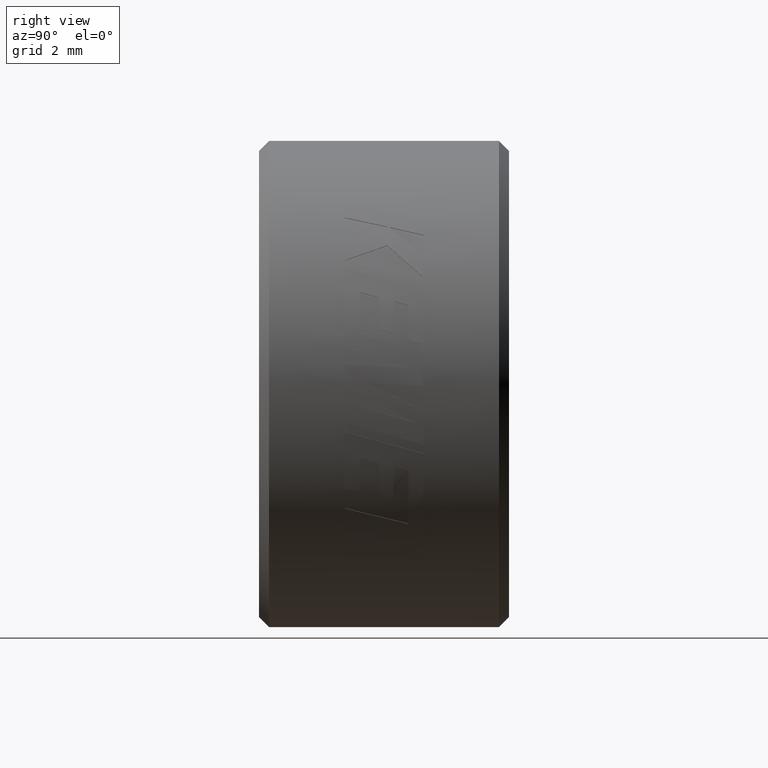
[diagram: clean part render]
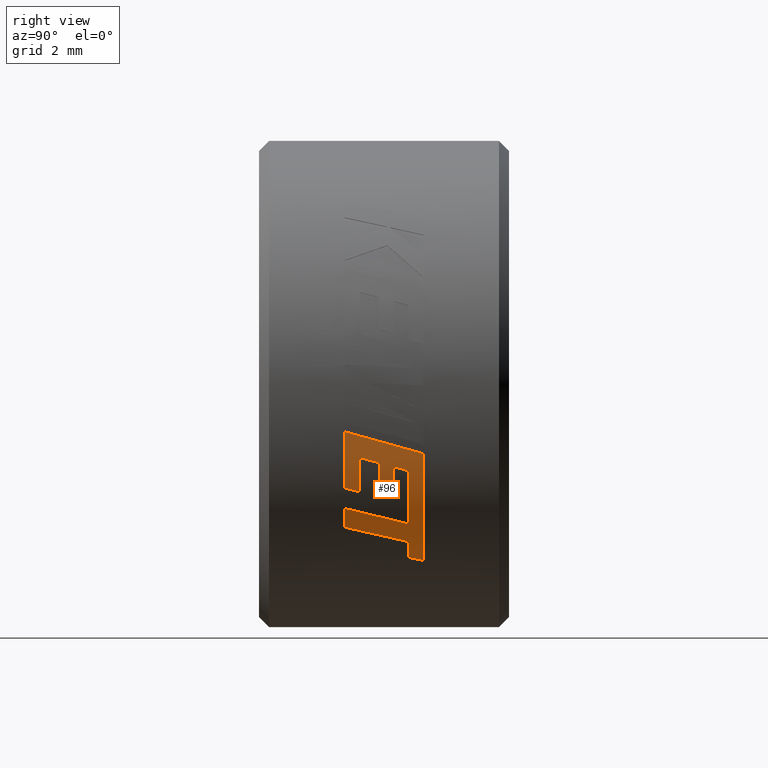
[diagram: same view with one face highlighted and labeled with its STEP entity id]
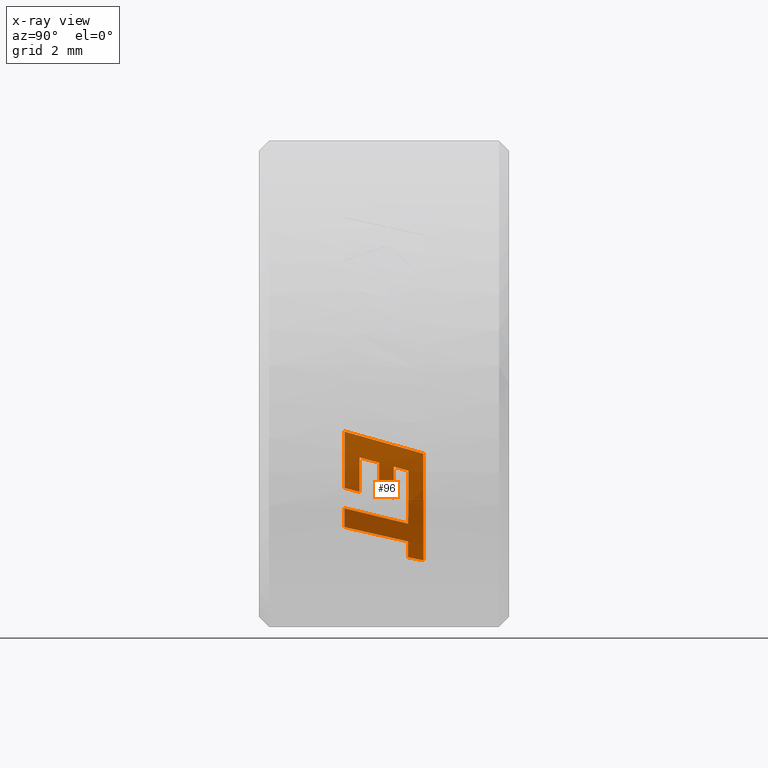
[diagram: x-ray of the same camera — body ghosted, the highlighted face saturated]
A machine part, right view. The second image highlights one B-rep face of the part: STEP entity #96.
The next image is the same camera in x-ray: the body ghosted, the highlighted face saturated — about 0% of this face is hidden behind the body in this view.
In plain terms, the highlighted cylindrical surface (partial cylindrical patch) has radius 5.26 mm, axis along (0, 1, 0).
Its self-contained STEP definition (entity closure, byte-faithful):
#12 = DIRECTION ( 'NONE',  ( 0.000000000000000000, 1.000000000000000000, 0.000000000000000000 ) ) ;
#26 = EDGE_CURVE ( 'NONE', #1311, #2202, #672, .T. ) ;
#45 = CARTESIAN_POINT ( 'NONE',  ( 4.010860456621681891, 0.5216594178131411796, -3.403027827906864644 ) ) ;
#55 = EDGE_CURVE ( 'NONE', #956, #1168, #1120, .T. ) ;
#57 = DIRECTION ( 'NONE',  ( 0.000000000000000000, 0.000000000000000000, 1.000000000000000000 ) ) ;
#61 = DIRECTION ( 'NONE',  ( 0.000000000000000000, 1.000000000000000000, 0.000000000000000000 ) ) ;
#68 = CARTESIAN_POINT ( 'NONE',  ( 5.040167173883128626, 0.8501155299763395456, -1.504764054365650416 ) ) ;
#76 = DIRECTION ( 'NONE',  ( 0.000000000000000000, 0.000000000000000000, 1.000000000000000000 ) ) ;
#96 = ADVANCED_FACE ( 'NONE', ( #2167 ), #999, .T. ) ;
#97 = CARTESIAN_POINT ( 'NONE',  ( 3.693584115049682204, 0.5216224423916465680, -3.745001520033422793 ) ) ;
#110 = EDGE_CURVE ( 'NONE', #1172, #1757, #1608, .T. ) ;
#112 = CARTESIAN_POINT ( 'NONE',  ( 3.910227406470574874, 0.5216470926726438639, -3.521635474359337437 ) ) ;
#114 = ORIENTED_EDGE ( 'NONE', *, *, #2138, .F. ) ;
#123 = ORIENTED_EDGE ( 'NONE', *, *, #897, .T. ) ;
#125 = CARTESIAN_POINT ( 'NONE',  ( 3.648491064170817477, 0.7406178341147761079, -3.789077321652413399 ) ) ;
#149 = ORIENTED_EDGE ( 'NONE', *, *, #1084, .T. ) ;
#151 = ORIENTED_EDGE ( 'NONE', *, *, #110, .T. ) ;
#185 = CARTESIAN_POINT ( 'NONE',  ( 4.406512115215013736, 0.5224611484576491272, -2.877513124577517623 ) ) ;
#186 = CARTESIAN_POINT ( 'NONE',  ( 5.002361790938985919, -0.3863979468079390411, -1.626530346554148077 ) ) ;
#203 = AXIS2_PLACEMENT_3D ( 'NONE', #1448, #1317, #1912 ) ;
#240 = CARTESIAN_POINT ( 'NONE',  ( 4.010860456621681891, 0.5216594178131411796, -3.403027827906864644 ) ) ;
#243 = CARTESIAN_POINT ( 'NONE',  ( 5.126361800914518874, -0.2839695298731071960, -1.189419255518920471 ) ) ;
#254 = CARTESIAN_POINT ( 'NONE',  ( 4.914763290022835740, 0.5262577309738969422, -1.874220318704262533 ) ) ;
#256 = CARTESIAN_POINT ( 'NONE',  ( 3.625649623804711563, 0.8501155299763404338, -3.810808943702733931 ) ) ;
#261 = ORIENTED_EDGE ( 'NONE', *, *, #1751, .T. ) ;
#274 = EDGE_CURVE ( 'NONE', #460, #1499, #2282, .T. ) ;
#309 = ORIENTED_EDGE ( 'NONE', *, *, #26, .F. ) ;
#310 = CARTESIAN_POINT ( 'NONE',  ( 4.255041138469063178, -0.8510120597978315660, -3.092284739466256926 ) ) ;
#334 = VERTEX_POINT ( 'NONE', #1143 ) ;
#339 = CARTESIAN_POINT ( 'NONE',  ( 4.383030547821341827, 0.06410225861231760858, -2.911016204804220298 ) ) ;
#354 = ORIENTED_EDGE ( 'NONE', *, *, #418, .T. ) ;
#384 = VERTEX_POINT ( 'NONE', #1422 ) ;
#418 = EDGE_CURVE ( 'NONE', #2253, #1789, #1624, .T. ) ;
#443 = CARTESIAN_POINT ( 'NONE',  ( 4.914763290022835740, 0.5262577309738969422, -1.874220318704262533 ) ) ;
#451 = CARTESIAN_POINT ( 'NONE',  ( 4.989751338830667571, -0.2454864591446034583, -1.664814113450931998 ) ) ;
#457 = EDGE_CURVE ( 'NONE', #1168, #1017, #1201, .T. ) ;
#460 = VERTEX_POINT ( 'NONE', #843 ) ;
#479 = CARTESIAN_POINT ( 'NONE',  ( 4.741975839466228138, -0.7431111846889788541, -2.276445945582600494 ) ) ;
#480 = B_SPLINE_CURVE_WITH_KNOTS ( 'NONE', 3,
 ( #1976, #1251, #125, #256 ),
 .UNSPECIFIED., .F., .F.,
 ( 4, 4 ),
 ( 0.000000000000000000, 1.000000000000000000 ),
 .UNSPECIFIED. ) ;
#494 = CARTESIAN_POINT ( 'NONE',  ( 3.804329881713983674, 0.5216347675321455490, -3.635776249396787563 ) ) ;
#496 = ORIENTED_EDGE ( 'NONE', *, *, #1996, .F. ) ;
#508 = CARTESIAN_POINT ( 'NONE',  ( 5.086915556446435893, 0.2830730000516167300, -1.348181590461009272 ) ) ;
#533 = B_SPLINE_CURVE_WITH_KNOTS ( 'NONE', 3,
 ( #68, #508, #243, #812 ),
 .UNSPECIFIED., .F., .F.,
 ( 4, 4 ),
 ( 0.000000000000000000, 1.000000000000000000 ),
 .UNSPECIFIED. ) ;
#536 = CIRCLE ( 'NONE', #1916, 5.259999999999999787 ) ;
#546 = EDGE_CURVE ( 'NONE', #1499, #1277, #1529, .T. ) ;
#549 = CARTESIAN_POINT ( 'NONE',  ( 3.625649623804711563, 0.8501155299763404338, -3.810808943702733931 ) ) ;
#618 = DIRECTION ( 'NONE',  ( 0.000000000000000000, 0.000000000000000000, 1.000000000000000000 ) ) ;
#651 = ORIENTED_EDGE ( 'NONE', *, *, #55, .T. ) ;
#672 = CIRCLE ( 'NONE', #2180, 5.259999999999999787 ) ;
#680 = CIRCLE ( 'NONE', #2192, 5.259999999999999787 ) ;
#708 = CARTESIAN_POINT ( 'NONE',  ( 4.454619619813009912, -0.3934549005927568954, -2.800238591717642223 ) ) ;
#735 = CARTESIAN_POINT ( 'NONE',  ( 4.536577579382012892, 0.8501155299763399897, -2.662153989957838363 ) ) ;
#741 = CARTESIAN_POINT ( 'NONE',  ( 4.521947814460941295, -0.8510120597978311219, -2.686929095322744931 ) ) ;
#742 = EDGE_CURVE ( 'NONE', #1757, #460, #1105, .T. ) ;
#761 = ORIENTED_EDGE ( 'NONE', *, *, #742, .T. ) ;
#772 = DIRECTION ( 'NONE',  ( 0.000000000000000000, 1.000000000000000000, 0.000000000000000000 ) ) ;
#778 = EDGE_CURVE ( 'NONE', #2025, #334, #533, .T. ) ;
#803 = CARTESIAN_POINT ( 'NONE',  ( 4.651333573947837863, 0.2098482682436754176, -2.456154714969239095 ) ) ;
#812 = CARTESIAN_POINT ( 'NONE',  ( 5.158334807668133237, -0.8510120597978311219, -1.029165687340650948 ) ) ;
#817 = CARTESIAN_POINT ( 'NONE',  ( 4.976702569521308739, -0.1045749714812679032, -1.702947895421345503 ) ) ;
#843 = CARTESIAN_POINT ( 'NONE',  ( 4.583408402439843599, 0.5240646097381626012, -2.580691267169290093 ) ) ;
#850 = CARTESIAN_POINT ( 'NONE',  ( 4.946874224995746694, 0.2098482682436745572, -1.787745899749941803 ) ) ;
#893 = CARTESIAN_POINT ( 'NONE',  ( 4.692674311466835668, -0.1045749714812687636, -2.376217121076954264 ) ) ;
#897 = EDGE_CURVE ( 'NONE', #384, #2142, #1590, .T. ) ;
#903 = CARTESIAN_POINT ( 'NONE',  ( 4.651333573947837863, 0.2098482682436754176, -2.456154714969239095 ) ) ;
#922 = CARTESIAN_POINT ( 'NONE',  ( 4.679122350480813708, 0.0002327750937131914562, -2.402980222236785757 ) ) ;
#956 = VERTEX_POINT ( 'NONE', #310 ) ;
#987 = CARTESIAN_POINT ( 'NONE',  ( 4.177578015849235271, -0.3934549005941734845, -3.198875432507845673 ) ) ;
#999 = CYLINDRICAL_SURFACE ( 'NONE', #1471, 5.259999999999999787 ) ;
#1005 = CARTESIAN_POINT ( 'NONE',  ( 5.014530594305473876, -0.5273094344712754289, -1.588106708875191453 ) ) ;
#1006 = DIRECTION ( 'NONE',  ( 0.000000000000000000, 0.000000000000000000, 1.000000000000000000 ) ) ;
#1014 = B_SPLINE_CURVE_WITH_KNOTS ( 'NONE', 3,
 ( #1891, #186, #451, #817 ),
 .UNSPECIFIED., .F., .F.,
 ( 4, 4 ),
 ( 0.000000000000000000, 1.000000000000000000 ),
 .UNSPECIFIED. ) ;
#1017 = VERTEX_POINT ( 'NONE', #1564 ) ;
#1019 = CARTESIAN_POINT ( 'NONE',  ( 4.946874224995746694, 0.2098482682436745572, -1.787745899749941803 ) ) ;
#1060 = CARTESIAN_POINT ( 'NONE',  ( 4.976702569521308739, -0.1045749714812679032, -1.702947895421345503 ) ) ;
#1064 = CARTESIAN_POINT ( 'NONE',  ( 4.665341432311307379, 0.1050405216686943338, -2.429627386903129516 ) ) ;
#1084 = EDGE_CURVE ( 'NONE', #334, #2253, #1746, .T. ) ;
#1086 = ORIENTED_EDGE ( 'NONE', *, *, #2300, .T. ) ;
#1092 = ORIENTED_EDGE ( 'NONE', *, *, #1650, .T. ) ;
#1100 = CARTESIAN_POINT ( 'NONE',  ( 4.307382701505363620, 0.5216594178173912244, -3.018949198441794657 ) ) ;
#1105 = B_SPLINE_CURVE_WITH_KNOTS ( 'NONE', 3,
 ( #254, #1249, #1623, #1776 ),
 .UNSPECIFIED., .F., .F.,
 ( 4, 4 ),
 ( 0.000000000000000000, 1.000000000000000000 ),
 .UNSPECIFIED. ) ;
#1108 = CARTESIAN_POINT ( 'NONE',  ( 4.307382701505363620, 0.5216594178173912244, -3.018949198441794657 ) ) ;
#1120 = B_SPLINE_CURVE_WITH_KNOTS ( 'NONE', 3,
 ( #1984, #987, #1186, #240 ),
 .UNSPECIFIED., .F., .F.,
 ( 4, 4 ),
 ( 0.000000000000000000, 1.000000000000000000 ),
 .UNSPECIFIED. ) ;
#1143 = CARTESIAN_POINT ( 'NONE',  ( 5.158334807668133237, -0.8510120597978311219, -1.029165687340650948 ) ) ;
#1158 = CARTESIAN_POINT ( 'NONE',  ( 4.583408402439843599, 0.5240646097381626012, -2.580691267169290093 ) ) ;
#1168 = VERTEX_POINT ( 'NONE', #1811 ) ;
#1172 = VERTEX_POINT ( 'NONE', #1019 ) ;
#1185 = VERTEX_POINT ( 'NONE', #1060 ) ;
#1186 = CARTESIAN_POINT ( 'NONE',  ( 4.096107833277343957, 0.06410225860948431942, -3.302553970697994501 ) ) ;
#1193 = CIRCLE ( 'NONE', #203, 5.259999999999999787 ) ;
#1201 = B_SPLINE_CURVE_WITH_KNOTS ( 'NONE', 3,
 ( #45, #112, #494, #97 ),
 .UNSPECIFIED., .F., .F.,
 ( 4, 4 ),
 ( 0.000000000000000000, 1.000000000000000000 ),
 .UNSPECIFIED. ) ;
#1211 = DIRECTION ( 'NONE',  ( 0.000000000000000000, 1.000000000000000000, 0.000000000000000000 ) ) ;
#1220 = CARTESIAN_POINT ( 'NONE',  ( 4.715021527675801849, -0.5273094344712746517, -2.331559991412131883 ) ) ;
#1249 = CARTESIAN_POINT ( 'NONE',  ( 4.821998172259291060, 0.5255266905619863094, -2.117478056777505113 ) ) ;
#1251 = CARTESIAN_POINT ( 'NONE',  ( 3.671137114910204780, 0.6311201382532116710, -3.767140331647297113 ) ) ;
#1254 = ORIENTED_EDGE ( 'NONE', *, *, #778, .T. ) ;
#1260 = DIRECTION ( 'NONE',  ( 0.000000000000000000, 1.000000000000000000, 0.000000000000000000 ) ) ;
#1277 = VERTEX_POINT ( 'NONE', #1719 ) ;
#1299 = ORIENTED_EDGE ( 'NONE', *, *, #1402, .T. ) ;
#1311 = VERTEX_POINT ( 'NONE', #735 ) ;
#1317 = DIRECTION ( 'NONE',  ( 0.000000000000000000, 1.000000000000000000, 0.000000000000000000 ) ) ;
#1329 = CARTESIAN_POINT ( 'NONE',  ( 0.000000000000000000, -0.8510120597978311219, 0.000000000000000000 ) ) ;
#1353 = AXIS2_PLACEMENT_3D ( 'NONE', #1573, #2327, #1006 ) ;
#1360 = EDGE_LOOP ( 'NONE', ( #761, #1932, #1717, #261, #651, #1958, #1086, #309, #2068, #1254, #149, #354, #114, #1299, #1092, #123, #496, #151 ) ) ;
#1400 = CARTESIAN_POINT ( 'NONE',  ( 0.000000000000000000, -2.700000000000000178, 0.000000000000000000 ) ) ;
#1402 = EDGE_CURVE ( 'NONE', #1425, #1185, #1014, .T. ) ;
#1422 = CARTESIAN_POINT ( 'NONE',  ( 4.692674311466835668, -0.1045749714812687636, -2.376217121076954264 ) ) ;
#1425 = VERTEX_POINT ( 'NONE', #1005 ) ;
#1448 = CARTESIAN_POINT ( 'NONE',  ( 0.000000000000000000, -0.8510120597978311219, 0.000000000000000000 ) ) ;
#1451 = CARTESIAN_POINT ( 'NONE',  ( 4.755090125149376235, -0.8510120597978315660, -2.248714722170619851 ) ) ;
#1469 = DIRECTION ( 'NONE',  ( 0.000000000000000000, 0.000000000000000000, 1.000000000000000000 ) ) ;
#1471 = AXIS2_PLACEMENT_3D ( 'NONE', #1400, #1211, #76 ) ;
#1499 = VERTEX_POINT ( 'NONE', #2313 ) ;
#1510 = AXIS2_PLACEMENT_3D ( 'NONE', #1329, #772, #2123 ) ;
#1514 = CARTESIAN_POINT ( 'NONE',  ( 4.498669509711159975, 0.5232628790979063638, -2.731190847606169925 ) ) ;
#1529 = B_SPLINE_CURVE_WITH_KNOTS ( 'NONE', 3,
 ( #1100, #339, #708, #741 ),
 .UNSPECIFIED., .F., .F.,
 ( 4, 4 ),
 ( 0.000000000000000000, 1.000000000000000000 ),
 .UNSPECIFIED. ) ;
#1564 = CARTESIAN_POINT ( 'NONE',  ( 3.693584115049682204, 0.5216224423916465680, -3.745001520033422793 ) ) ;
#1573 = CARTESIAN_POINT ( 'NONE',  ( 0.000000000000000000, 0.2098482682436745572, 0.000000000000000000 ) ) ;
#1590 = B_SPLINE_CURVE_WITH_KNOTS ( 'NONE', 3,
 ( #893, #922, #1064, #903 ),
 .UNSPECIFIED., .F., .F.,
 ( 4, 4 ),
 ( 0.000000000000000000, 1.000000000000000000 ),
 .UNSPECIFIED. ) ;
#1601 = CARTESIAN_POINT ( 'NONE',  ( 0.000000000000000000, 0.8501155299763395456, 0.000000000000000000 ) ) ;
#1608 = B_SPLINE_CURVE_WITH_KNOTS ( 'NONE', 3,
 ( #850, #1953, #1772, #443 ),
 .UNSPECIFIED., .F., .F.,
 ( 4, 4 ),
 ( 0.000000000000000000, 1.000000000000000000 ),
 .UNSPECIFIED. ) ;
#1623 = CARTESIAN_POINT ( 'NONE',  ( 4.711140519588064457, 0.5247956501500748994, -2.353834042344891131 ) ) ;
#1624 = B_SPLINE_CURVE_WITH_KNOTS ( 'NONE', 3,
 ( #1451, #479, #2304, #1220 ),
 .UNSPECIFIED., .F., .F.,
 ( 4, 4 ),
 ( 0.000000000000000000, 1.000000000000000000 ),
 .UNSPECIFIED. ) ;
#1640 = CARTESIAN_POINT ( 'NONE',  ( 4.755090125149376235, -0.8510120597978315660, -2.248714722170619851 ) ) ;
#1650 = EDGE_CURVE ( 'NONE', #1185, #384, #680, .T. ) ;
#1698 = CARTESIAN_POINT ( 'NONE',  ( 4.914763290022835740, 0.5262577309738969422, -1.874220318704262533 ) ) ;
#1717 = ORIENTED_EDGE ( 'NONE', *, *, #546, .T. ) ;
#1719 = CARTESIAN_POINT ( 'NONE',  ( 4.521947814460941295, -0.8510120597978311219, -2.686929095322744931 ) ) ;
#1746 = CIRCLE ( 'NONE', #1510, 5.259999999999999787 ) ;
#1751 = EDGE_CURVE ( 'NONE', #1277, #956, #1193, .T. ) ;
#1757 = VERTEX_POINT ( 'NONE', #1698 ) ;
#1772 = CARTESIAN_POINT ( 'NONE',  ( 4.925719412270509245, 0.4207879100638236558, -1.845490106526702867 ) ) ;
#1776 = CARTESIAN_POINT ( 'NONE',  ( 4.583408402439843599, 0.5240646097381626012, -2.580691267169290093 ) ) ;
#1789 = VERTEX_POINT ( 'NONE', #2279 ) ;
#1811 = CARTESIAN_POINT ( 'NONE',  ( 4.010860456621681891, 0.5216594178131411796, -3.403027827906864644 ) ) ;
#1891 = CARTESIAN_POINT ( 'NONE',  ( 5.014530594305473876, -0.5273094344712754289, -1.588106708875191453 ) ) ;
#1912 = DIRECTION ( 'NONE',  ( 0.000000000000000000, 0.000000000000000000, 1.000000000000000000 ) ) ;
#1916 = AXIS2_PLACEMENT_3D ( 'NONE', #1601, #61, #2153 ) ;
#1932 = ORIENTED_EDGE ( 'NONE', *, *, #274, .T. ) ;
#1941 = EDGE_CURVE ( 'NONE', #2025, #1311, #536, .T. ) ;
#1953 = CARTESIAN_POINT ( 'NONE',  ( 4.936423605914325385, 0.3153180891537495367, -1.816663822692100361 ) ) ;
#1958 = ORIENTED_EDGE ( 'NONE', *, *, #457, .T. ) ;
#1962 = DIRECTION ( 'NONE',  ( 0.000000000000000000, 1.000000000000000000, 0.000000000000000000 ) ) ;
#1972 = CIRCLE ( 'NONE', #2288, 5.259999999999999787 ) ;
#1973 = CARTESIAN_POINT ( 'NONE',  ( 0.000000000000000000, -0.1045749714812679032, 0.000000000000000000 ) ) ;
#1976 = CARTESIAN_POINT ( 'NONE',  ( 3.693584115049682204, 0.5216224423916465680, -3.745001520033422793 ) ) ;
#1984 = CARTESIAN_POINT ( 'NONE',  ( 4.255041138469063178, -0.8510120597978315660, -3.092284739466256926 ) ) ;
#1996 = EDGE_CURVE ( 'NONE', #1172, #2142, #2232, .T. ) ;
#2025 = VERTEX_POINT ( 'NONE', #2383 ) ;
#2068 = ORIENTED_EDGE ( 'NONE', *, *, #1941, .F. ) ;
#2123 = DIRECTION ( 'NONE',  ( 0.000000000000000000, 0.000000000000000000, 1.000000000000000000 ) ) ;
#2138 = EDGE_CURVE ( 'NONE', #1425, #1789, #1972, .T. ) ;
#2142 = VERTEX_POINT ( 'NONE', #803 ) ;
#2153 = DIRECTION ( 'NONE',  ( 0.000000000000000000, 0.000000000000000000, 1.000000000000000000 ) ) ;
#2167 = FACE_OUTER_BOUND ( 'NONE', #1360, .T. ) ;
#2180 = AXIS2_PLACEMENT_3D ( 'NONE', #2329, #1962, #618 ) ;
#2192 = AXIS2_PLACEMENT_3D ( 'NONE', #1973, #1260, #1469 ) ;
#2202 = VERTEX_POINT ( 'NONE', #549 ) ;
#2232 = CIRCLE ( 'NONE', #1353, 5.259999999999999787 ) ;
#2253 = VERTEX_POINT ( 'NONE', #1640 ) ;
#2279 = CARTESIAN_POINT ( 'NONE',  ( 4.715021527675801849, -0.5273094344712746517, -2.331559991412131883 ) ) ;
#2282 = B_SPLINE_CURVE_WITH_KNOTS ( 'NONE', 3,
 ( #1158, #1514, #185, #1108 ),
 .UNSPECIFIED., .F., .F.,
 ( 4, 4 ),
 ( 0.000000000000000000, 1.000000000000000000 ),
 .UNSPECIFIED. ) ;
#2285 = CARTESIAN_POINT ( 'NONE',  ( 0.000000000000000000, -0.5273094344712754289, 0.000000000000000000 ) ) ;
#2288 = AXIS2_PLACEMENT_3D ( 'NONE', #2285, #12, #57 ) ;
#2300 = EDGE_CURVE ( 'NONE', #1017, #2202, #480, .T. ) ;
#2304 = CARTESIAN_POINT ( 'NONE',  ( 4.728618958916551485, -0.6352103095801264754, -2.304062444165923651 ) ) ;
#2313 = CARTESIAN_POINT ( 'NONE',  ( 4.307382701505363620, 0.5216594178173912244, -3.018949198441794657 ) ) ;
#2327 = DIRECTION ( 'NONE',  ( 0.000000000000000000, 1.000000000000000000, 0.000000000000000000 ) ) ;
#2329 = CARTESIAN_POINT ( 'NONE',  ( 0.000000000000000000, 0.8501155299763404338, 0.000000000000000000 ) ) ;
#2383 = CARTESIAN_POINT ( 'NONE',  ( 5.040167173883128626, 0.8501155299763395456, -1.504764054365650416 ) ) ;